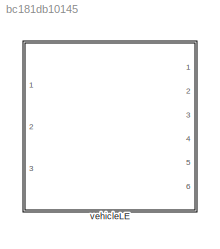
MODEL slx_bc181db10145
KIND library
CONFIG AbsTol = auto
CONFIG EnableMultiTasking = off
CONFIG FixedStep = auto
CONFIG MaxStep = auto
CONFIG MinStep = auto
CONFIG RelTol = 1e-3
CONFIG SampleTimeConstraint = Unconstrained
CONFIG Solver = VariableStepAuto
CONFIG SolverName = VariableStepAuto
CONFIG StartTime = 0.0
CONFIG StopTime = 10.0
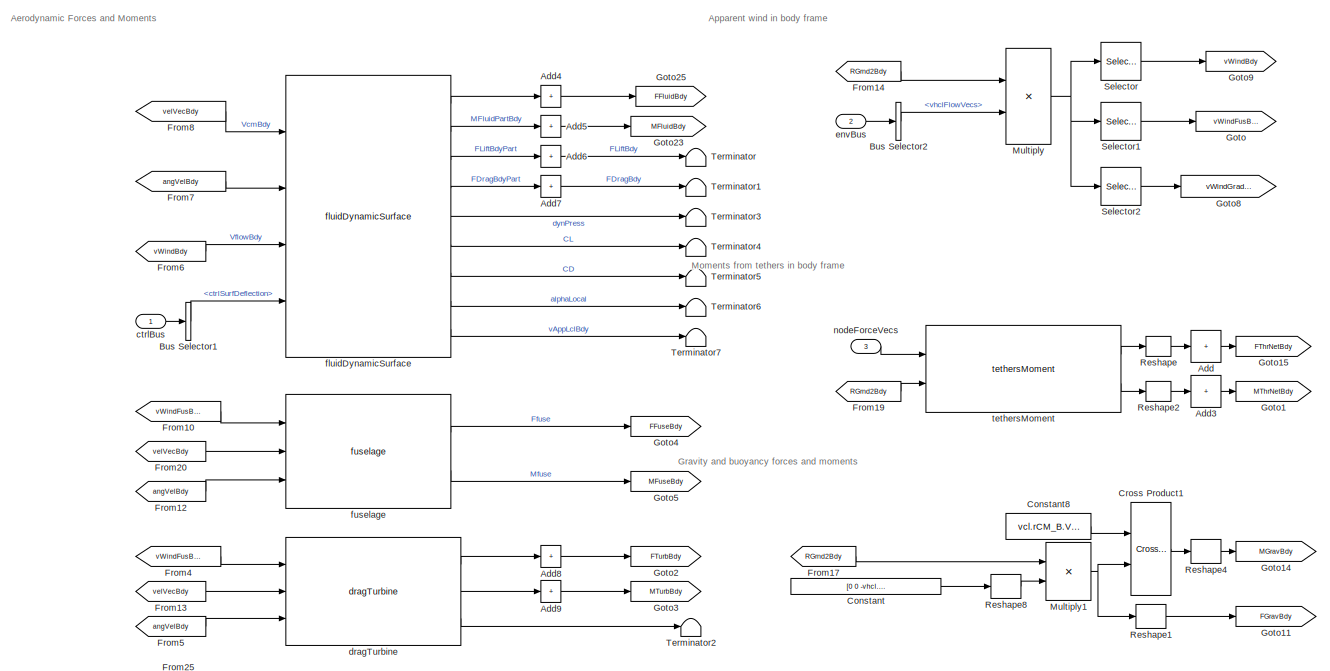
[diagram: vehicleLE - part 1/2, full width, top band]
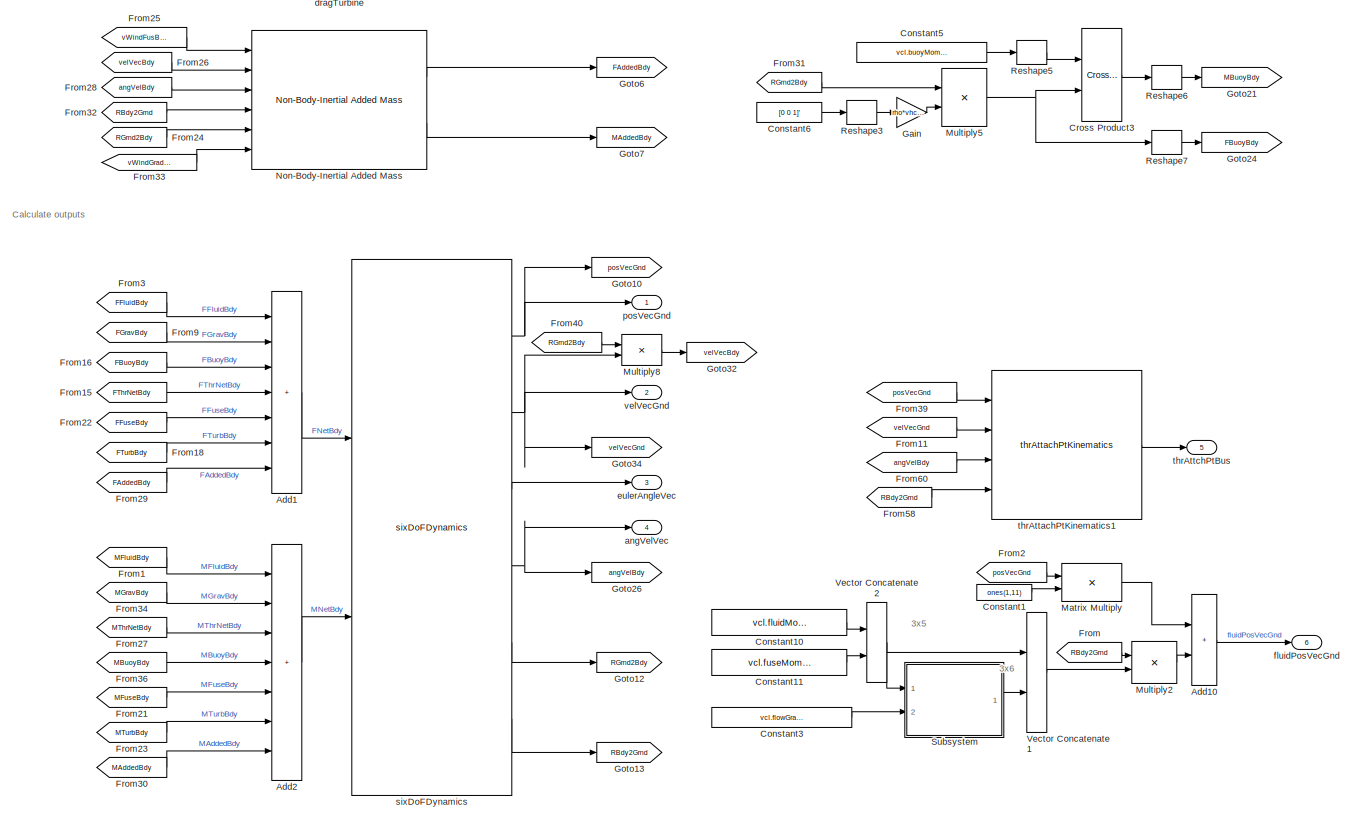
[diagram: vehicleLE - part 2/2, full width, bottom band]
BLOCK [SubSystem] vehicleLE
  Ports = [3, 6]
  RequestExecContextInheritance = off
  VariantControl = VSS_vehicle_vehicleLETest
BLOCK [Sum] vehicleLE/Add
  CollapseDim = 2
  CollapseMode = Specified dimension
  IconShape = rectangular
  Inputs = +
  Ports = [1, 1]
BLOCK [Sum] vehicleLE/Add1
  IconShape = rectangular
  Inputs = +++++++
  Ports = [7, 1]
BLOCK [Sum] vehicleLE/Add10
  IconShape = rectangular
  Ports = [2, 1]
BLOCK [Sum] vehicleLE/Add2
  IconShape = rectangular
  Inputs = +++++++
  Ports = [7, 1]
BLOCK [Sum] vehicleLE/Add3
  CollapseDim = 2
  CollapseMode = Specified dimension
  IconShape = rectangular
  Inputs = +
  Ports = [1, 1]
BLOCK [Sum] vehicleLE/Add4
  CollapseDim = 2
  CollapseMode = Specified dimension
  IconShape = rectangular
  Inputs = 1
  Ports = [1, 1]
BLOCK [Sum] vehicleLE/Add5
  CollapseDim = 2
  CollapseMode = Specified dimension
  IconShape = rectangular
  Inputs = 1
  Ports = [1, 1]
BLOCK [Sum] vehicleLE/Add6
  CollapseDim = 2
  CollapseMode = Specified dimension
  IconShape = rectangular
  Inputs = 1
  Ports = [1, 1]
BLOCK [Sum] vehicleLE/Add7
  CollapseDim = 2
  CollapseMode = Specified dimension
  IconShape = rectangular
  Inputs = 1
  Ports = [1, 1]
BLOCK [Sum] vehicleLE/Add8
  CollapseDim = 2
  CollapseMode = Specified dimension
  IconShape = rectangular
  Inputs = 1
  Ports = [1, 1]
BLOCK [Sum] vehicleLE/Add9
  CollapseDim = 2
  CollapseMode = Specified dimension
  IconShape = rectangular
  Inputs = 1
  Ports = [1, 1]
BLOCK [BusSelector] vehicleLE/Bus Selector1
  OutputSignals = ctrlSurfDeflection
  Ports = [1, 1]
BLOCK [BusSelector] vehicleLE/Bus Selector2
  OutputSignals = vhclFlowVecs
  Ports = [1, 1]
BLOCK [Constant] vehicleLE/Constant
  Value = [0 0 -vhcl.mass.Value*grav]
BLOCK [Constant] vehicleLE/Constant1
  Value = ones(1,11)
  VectorParams1D = off
BLOCK [Constant] vehicleLE/Constant10
  Value = vcl.fluidMomentArms.Value
BLOCK [Constant] vehicleLE/Constant11
  Value = vcl.fuseMomentArm.Value
BLOCK [Constant] vehicleLE/Constant3
  Value = vcl.flowGradientDist.Value
BLOCK [Constant] vehicleLE/Constant5
  Value = vcl.buoyMomentArm.Value
BLOCK [Constant] vehicleLE/Constant6
  Value = [0 0 1]'
BLOCK [Constant] vehicleLE/Constant8
  Value = vcl.rCM_B.Value
BLOCK [Reference] vehicleLE/Cross Product1  REF=vrlib/Utilities/Cross Product
  Ports = [2, 1]
  SourceBlock = vrlib/Utilities/Cross Product
  SourceProductBaseCode = SL
  SourceType = Cross Product
BLOCK [Reference] vehicleLE/Cross Product3  REF=vrlib/Utilities/Cross Product
  Ports = [2, 1]
  SourceBlock = vrlib/Utilities/Cross Product
  SourceProductBaseCode = SL
  SourceType = Cross Product
BLOCK [From] vehicleLE/From
  GotoTag = RBdy2Grnd
BLOCK [From] vehicleLE/From1
  GotoTag = MFluidBdy
BLOCK [From] vehicleLE/From10
  GotoTag = vWindFusBdy
BLOCK [From] vehicleLE/From11
  GotoTag = velVecGnd
BLOCK [From] vehicleLE/From12
  GotoTag = angVelBdy
BLOCK [From] vehicleLE/From13
  GotoTag = velVecBdy
BLOCK [From] vehicleLE/From14
  GotoTag = RGrnd2Bdy
BLOCK [From] vehicleLE/From15
  GotoTag = FThrNetBdy
BLOCK [From] vehicleLE/From16
  GotoTag = FBuoyBdy
BLOCK [From] vehicleLE/From17
  GotoTag = RGrnd2Bdy
BLOCK [From] vehicleLE/From18
  GotoTag = FTurbBdy
BLOCK [From] vehicleLE/From19
  GotoTag = RGrnd2Bdy
BLOCK [From] vehicleLE/From2
  GotoTag = posVecGnd
BLOCK [From] vehicleLE/From20
  GotoTag = velVecBdy
BLOCK [From] vehicleLE/From21
  GotoTag = MFuseBdy
BLOCK [From] vehicleLE/From22
  GotoTag = FFuseBdy
BLOCK [From] vehicleLE/From23
  GotoTag = MTurbBdy
BLOCK [From] vehicleLE/From24
  GotoTag = RGrnd2Bdy
BLOCK [From] vehicleLE/From25
  GotoTag = vWindFusBdy
BLOCK [From] vehicleLE/From26
  GotoTag = velVecBdy
BLOCK [From] vehicleLE/From27
  GotoTag = MThrNetBdy
BLOCK [From] vehicleLE/From28
  GotoTag = angVelBdy
BLOCK [From] vehicleLE/From29
  GotoTag = FAddedBdy
BLOCK [From] vehicleLE/From3
  GotoTag = FFluidBdy
BLOCK [From] vehicleLE/From30
  GotoTag = MAddedBdy
BLOCK [From] vehicleLE/From31
  GotoTag = RGrnd2Bdy
BLOCK [From] vehicleLE/From32
  GotoTag = RBdy2Grnd
BLOCK [From] vehicleLE/From33
  GotoTag = vWindGradGrnd
BLOCK [From] vehicleLE/From34
  GotoTag = MGravBdy
BLOCK [From] vehicleLE/From36
  GotoTag = MBuoyBdy
BLOCK [From] vehicleLE/From39
  GotoTag = posVecGnd
BLOCK [From] vehicleLE/From4
  GotoTag = vWindFusBdy
BLOCK [From] vehicleLE/From40
  GotoTag = RGrnd2Bdy
BLOCK [From] vehicleLE/From5
  GotoTag = angVelBdy
BLOCK [From] vehicleLE/From58
  GotoTag = RBdy2Grnd
BLOCK [From] vehicleLE/From6
  GotoTag = vWindBdy
BLOCK [From] vehicleLE/From60
  GotoTag = angVelBdy
BLOCK [From] vehicleLE/From7
  GotoTag = angVelBdy
BLOCK [From] vehicleLE/From8
  GotoTag = velVecBdy
BLOCK [From] vehicleLE/From9
  GotoTag = FGravBdy
BLOCK [Gain] vehicleLE/Gain
  Gain = rho*vhcl.volume.Value*grav
BLOCK [Goto] vehicleLE/Goto
  GotoTag = vWindFusBdy
BLOCK [Goto] vehicleLE/Goto1
  GotoTag = MThrNetBdy
BLOCK [Goto] vehicleLE/Goto10
  GotoTag = posVecGnd
BLOCK [Goto] vehicleLE/Goto11
  GotoTag = FGravBdy
BLOCK [Goto] vehicleLE/Goto12
  GotoTag = RGrnd2Bdy
BLOCK [Goto] vehicleLE/Goto13
  GotoTag = RBdy2Grnd
BLOCK [Goto] vehicleLE/Goto14
  GotoTag = MGravBdy
BLOCK [Goto] vehicleLE/Goto15
  GotoTag = FThrNetBdy
BLOCK [Goto] vehicleLE/Goto2
  GotoTag = FTurbBdy
BLOCK [Goto] vehicleLE/Goto21
  GotoTag = MBuoyBdy
BLOCK [Goto] vehicleLE/Goto23
  GotoTag = MFluidBdy
BLOCK [Goto] vehicleLE/Goto24
  GotoTag = FBuoyBdy
BLOCK [Goto] vehicleLE/Goto25
  GotoTag = FFluidBdy
BLOCK [Goto] vehicleLE/Goto26
  GotoTag = angVelBdy
BLOCK [Goto] vehicleLE/Goto3
  GotoTag = MTurbBdy
BLOCK [Goto] vehicleLE/Goto32
  GotoTag = velVecBdy
BLOCK [Goto] vehicleLE/Goto34
  GotoTag = velVecGnd
BLOCK [Goto] vehicleLE/Goto4
  GotoTag = FFuseBdy
BLOCK [Goto] vehicleLE/Goto5
  GotoTag = MFuseBdy
BLOCK [Goto] vehicleLE/Goto6
  GotoTag = FAddedBdy
BLOCK [Goto] vehicleLE/Goto7
  GotoTag = MAddedBdy
BLOCK [Goto] vehicleLE/Goto8
  GotoTag = vWindGradGrnd
BLOCK [Goto] vehicleLE/Goto9
  GotoTag = vWindBdy
BLOCK [Product] vehicleLE/Matrix Multiply
  Multiplication = Matrix(*)
  Ports = [2, 1]
BLOCK [Product] vehicleLE/Multiply
  Multiplication = Matrix(*)
  Ports = [2, 1]
BLOCK [Product] vehicleLE/Multiply1
  Multiplication = Matrix(*)
  Ports = [2, 1]
BLOCK [Product] vehicleLE/Multiply2
  Multiplication = Matrix(*)
  Ports = [2, 1]
BLOCK [Product] vehicleLE/Multiply5
  Multiplication = Matrix(*)
  Ports = [2, 1]
BLOCK [Product] vehicleLE/Multiply8
  Multiplication = Matrix(*)
  Ports = [2, 1]
BLOCK [Reference] vehicleLE/Non-Body-Inertial Added Mass  REF=addedMass_cl/Non-Body-Inertial Added Mass
  Ports = [6, 2]
  SourceBlock = addedMass_cl/Non-Body-Inertial Added Mass
BLOCK [Reshape] vehicleLE/Reshape
  OutputDimensionality = Customize
  OutputDimensions = [3 vcl.numTethers.Value]
  Ports = [1, 1]
BLOCK [Reshape] vehicleLE/Reshape1
  OutputDimensionality = Column vector (2-D)
  Ports = [1, 1]
BLOCK [Reshape] vehicleLE/Reshape2
  OutputDimensionality = Customize
  OutputDimensions = [3 vcl.numTethers.Value]
  Ports = [1, 1]
BLOCK [Reshape] vehicleLE/Reshape3
  OutputDimensionality = Column vector (2-D)
  Ports = [1, 1]
BLOCK [Reshape] vehicleLE/Reshape4
  OutputDimensionality = Column vector (2-D)
  Ports = [1, 1]
BLOCK [Reshape] vehicleLE/Reshape5
  OutputDimensionality = Column vector (2-D)
  Ports = [1, 1]
BLOCK [Reshape] vehicleLE/Reshape6
  OutputDimensionality = Column vector (2-D)
  Ports = [1, 1]
BLOCK [Reshape] vehicleLE/Reshape7
  OutputDimensionality = Column vector (2-D)
  Ports = [1, 1]
BLOCK [Reshape] vehicleLE/Reshape8
  OutputDimensionality = Column vector (2-D)
  Ports = [1, 1]
BLOCK [Selector] vehicleLE/Selector
  IndexOptions = Select all,Index vector (dialog)
  Indices = [1 3],1:4
  InputPortWidth = 3
  NumberOfDimensions = 2
  OutputSizes = 1,1
  Ports = [1, 1]
BLOCK [Selector] vehicleLE/Selector1
  IndexOptions = Select all,Index vector (dialog)
  Indices = [1 3],5
  InputPortWidth = 3
  NumberOfDimensions = 2
  OutputSizes = 1,1
  Ports = [1, 1]
BLOCK [Selector] vehicleLE/Selector2
  IndexOptions = Select all,Index vector (dialog)
  Indices = [1 3],6:11
  InputPortWidth = 3
  NumberOfDimensions = 2
  OutputSizes = 1,1
  Ports = [1, 1]
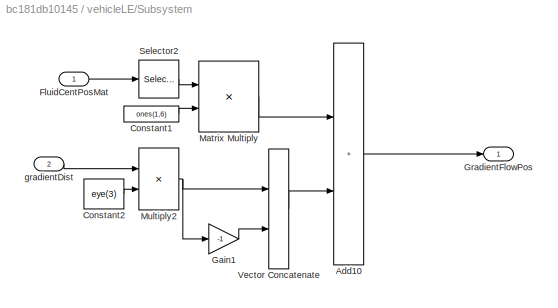
BLOCK [SubSystem] vehicleLE/Subsystem
  Ports = [2, 1]
  RequestExecContextInheritance = off
BLOCK [Sum] vehicleLE/Subsystem/Add10
  IconShape = rectangular
  Ports = [2, 1]
BLOCK [Constant] vehicleLE/Subsystem/Constant1
  Value = ones(1,6)
  VectorParams1D = off
BLOCK [Constant] vehicleLE/Subsystem/Constant2
  Value = eye(3)
BLOCK [Inport] vehicleLE/Subsystem/FluidCentPosMat
BLOCK [Gain] vehicleLE/Subsystem/Gain1
  Gain = -1
BLOCK [Outport] vehicleLE/Subsystem/GradientFlowPos
  VectorParamsAs1DForOutWhenUnconnected = off
BLOCK [Product] vehicleLE/Subsystem/Matrix Multiply
  Multiplication = Matrix(*)
  Ports = [2, 1]
BLOCK [Product] vehicleLE/Subsystem/Multiply2
  Ports = [2, 1]
BLOCK [Selector] vehicleLE/Subsystem/Selector2
  IndexOptions = Select all,Index vector (dialog)
  Indices = [1 3],5
  InputPortWidth = 3
  NumberOfDimensions = 2
  OutputSizes = 1,1
  Ports = [1, 1]
BLOCK [Concatenate] vehicleLE/Subsystem/Vector Concatenate
  ConcatenateDimension = 2
  Mode = Multidimensional array
  Ports = [2, 1]
BLOCK [Inport] vehicleLE/Subsystem/gradientDist
  Port = 2
BLOCK [Terminator] vehicleLE/Terminator
BLOCK [Terminator] vehicleLE/Terminator1
BLOCK [Terminator] vehicleLE/Terminator2
BLOCK [Terminator] vehicleLE/Terminator3
BLOCK [Terminator] vehicleLE/Terminator4
BLOCK [Terminator] vehicleLE/Terminator5
BLOCK [Terminator] vehicleLE/Terminator6
BLOCK [Terminator] vehicleLE/Terminator7
BLOCK [Concatenate] vehicleLE/Vector Concatenate1
  ConcatenateDimension = 2
  Mode = Multidimensional array
  Ports = [2, 1]
BLOCK [Concatenate] vehicleLE/Vector Concatenate2
  ConcatenateDimension = 2
  Mode = Multidimensional array
  Ports = [2, 1]
BLOCK [Outport] vehicleLE/angVelVec
  Port = 4
  VectorParamsAs1DForOutWhenUnconnected = off
BLOCK [Inport] vehicleLE/ctrlBus
  OutDataTypeStr = Bus: fltCtrlBus
BLOCK [Reference] vehicleLE/dragTurbine  REF=dragTurbine_ul/dragTurbine
  Ports = [3, 3]
  SourceBlock = dragTurbine_ul/dragTurbine
BLOCK [Inport] vehicleLE/envBus
  OutDataTypeStr = Bus: envBus
  Port = 2
BLOCK [Outport] vehicleLE/eulerAngleVec
  Port = 3
  VectorParamsAs1DForOutWhenUnconnected = off
BLOCK [Reference] vehicleLE/fluidDynamicSurface  REF=fluidDynamicSurface_cl/fluidDynamicSurface
  Ports = [4, 9]
  SourceBlock = fluidDynamicSurface_cl/fluidDynamicSurface
BLOCK [Outport] vehicleLE/fluidPosVecGnd
  Port = 6
  VectorParamsAs1DForOutWhenUnconnected = off
BLOCK [Reference] vehicleLE/fuselage  REF=fuselage_cl/fuselage  (lib defined in slx_45091b95913d, slx_54a95fec013f)
  Ports = [3, 2]
  SourceBlock = fuselage_cl/fuselage
BLOCK [Inport] vehicleLE/nodeForceVecs
  Port = 3
BLOCK [Outport] vehicleLE/posVecGnd
  VectorParamsAs1DForOutWhenUnconnected = off
BLOCK [Reference] vehicleLE/sixDoFDynamics  REF=sixDoFDynamics_cl/sixDoFDynamics
  Ports = [2, 6]
  SourceBlock = sixDoFDynamics_cl/sixDoFDynamics
BLOCK [Reference] vehicleLE/tethersMoment  REF=tethersMoment_cl/tethersMoment
  Ports = [2, 2]
  SourceBlock = tethersMoment_cl/tethersMoment
BLOCK [Reference] vehicleLE/thrAttachPtKinematics1  REF=thrAttachPtKinematics_ul/thrAttachPtKinematics
  Ports = [4, 1]
  SourceBlock = thrAttachPtKinematics_ul/thrAttachPtKinematics
BLOCK [Outport] vehicleLE/thrAttchPtBus
  Port = 5
  VectorParamsAs1DForOutWhenUnconnected = off
BLOCK [Outport] vehicleLE/velVecGnd
  Port = 2
  VectorParamsAs1DForOutWhenUnconnected = off
ANNOTATION vehicleLE: 3x5
ANNOTATION vehicleLE: 3x6
ANNOTATION vehicleLE: Aerodynamic Forces and Moments
ANNOTATION vehicleLE: Apparent wind in body frame
ANNOTATION vehicleLE: Calculate outputs
ANNOTATION vehicleLE: Gravity and buoyancy forces and moments
ANNOTATION vehicleLE: Moments from tethers in body frame
LINE vehicleLE/Add10:1 -> vehicleLE/fluidPosVecGnd:1
LINE vehicleLE/Add1:1 -> vehicleLE/sixDoFDynamics:1
LINE vehicleLE/Add2:1 -> vehicleLE/sixDoFDynamics:2
LINE vehicleLE/Add3:1 -> vehicleLE/Goto1:1
LINE vehicleLE/Add4:1 -> vehicleLE/Goto25:1
LINE vehicleLE/Add5:1 -> vehicleLE/Goto23:1
LINE vehicleLE/Add6:1 -> vehicleLE/Terminator:1
LINE vehicleLE/Add7:1 -> vehicleLE/Terminator1:1
LINE vehicleLE/Add8:1 -> vehicleLE/Goto2:1
LINE vehicleLE/Add9:1 -> vehicleLE/Goto3:1
LINE vehicleLE/Add:1 -> vehicleLE/Goto15:1
LINE vehicleLE/Bus Selector1:1 -> vehicleLE/fluidDynamicSurface:4
LINE vehicleLE/Bus Selector2:1 -> vehicleLE/Multiply:2
LINE vehicleLE/Constant10:1 -> vehicleLE/Vector Concatenate2:1
LINE vehicleLE/Constant11:1 -> vehicleLE/Vector Concatenate2:2
LINE vehicleLE/Constant1:1 -> vehicleLE/Matrix Multiply:2
LINE vehicleLE/Constant3:1 -> vehicleLE/Subsystem:2
LINE vehicleLE/Constant5:1 -> vehicleLE/Reshape5:1
LINE vehicleLE/Constant6:1 -> vehicleLE/Reshape3:1
LINE vehicleLE/Constant8:1 -> vehicleLE/Cross Product1:1
LINE vehicleLE/Constant:1 -> vehicleLE/Reshape8:1
LINE vehicleLE/Cross Product1:1 -> vehicleLE/Reshape4:1
LINE vehicleLE/Cross Product3:1 -> vehicleLE/Reshape6:1
LINE vehicleLE/From10:1 -> vehicleLE/fuselage:1
LINE vehicleLE/From11:1 -> vehicleLE/thrAttachPtKinematics1:2
LINE vehicleLE/From12:1 -> vehicleLE/fuselage:3
LINE vehicleLE/From13:1 -> vehicleLE/dragTurbine:2
LINE vehicleLE/From14:1 -> vehicleLE/Multiply:1
LINE vehicleLE/From15:1 -> vehicleLE/Add1:4
LINE vehicleLE/From16:1 -> vehicleLE/Add1:3
LINE vehicleLE/From17:1 -> vehicleLE/Multiply1:1
LINE vehicleLE/From18:1 -> vehicleLE/Add1:6
LINE vehicleLE/From19:1 -> vehicleLE/tethersMoment:2
LINE vehicleLE/From1:1 -> vehicleLE/Add2:1
LINE vehicleLE/From20:1 -> vehicleLE/fuselage:2
LINE vehicleLE/From21:1 -> vehicleLE/Add2:5
LINE vehicleLE/From22:1 -> vehicleLE/Add1:5
LINE vehicleLE/From23:1 -> vehicleLE/Add2:6
LINE vehicleLE/From24:1 -> vehicleLE/Non-Body-Inertial Added Mass:5
LINE vehicleLE/From25:1 -> vehicleLE/Non-Body-Inertial Added Mass:1
LINE vehicleLE/From26:1 -> vehicleLE/Non-Body-Inertial Added Mass:2
LINE vehicleLE/From27:1 -> vehicleLE/Add2:3
LINE vehicleLE/From28:1 -> vehicleLE/Non-Body-Inertial Added Mass:3
LINE vehicleLE/From29:1 -> vehicleLE/Add1:7
LINE vehicleLE/From2:1 -> vehicleLE/Matrix Multiply:1
LINE vehicleLE/From30:1 -> vehicleLE/Add2:7
LINE vehicleLE/From31:1 -> vehicleLE/Multiply5:1
LINE vehicleLE/From32:1 -> vehicleLE/Non-Body-Inertial Added Mass:4
LINE vehicleLE/From33:1 -> vehicleLE/Non-Body-Inertial Added Mass:6
LINE vehicleLE/From34:1 -> vehicleLE/Add2:2
LINE vehicleLE/From36:1 -> vehicleLE/Add2:4
LINE vehicleLE/From39:1 -> vehicleLE/thrAttachPtKinematics1:1
LINE vehicleLE/From3:1 -> vehicleLE/Add1:1
LINE vehicleLE/From40:1 -> vehicleLE/Multiply8:1
LINE vehicleLE/From4:1 -> vehicleLE/dragTurbine:1
LINE vehicleLE/From58:1 -> vehicleLE/thrAttachPtKinematics1:4
LINE vehicleLE/From5:1 -> vehicleLE/dragTurbine:3
LINE vehicleLE/From60:1 -> vehicleLE/thrAttachPtKinematics1:3
LINE vehicleLE/From6:1 -> vehicleLE/fluidDynamicSurface:3
LINE vehicleLE/From7:1 -> vehicleLE/fluidDynamicSurface:2
LINE vehicleLE/From8:1 -> vehicleLE/fluidDynamicSurface:1
LINE vehicleLE/From9:1 -> vehicleLE/Add1:2
LINE vehicleLE/From:1 -> vehicleLE/Multiply2:1
LINE vehicleLE/Gain:1 -> vehicleLE/Multiply5:2
LINE vehicleLE/Matrix Multiply:1 -> vehicleLE/Add10:1
NET vehicleLE/Multiply1:1 -> vehicleLE/Cross Product1:2, vehicleLE/Reshape1:1
LINE vehicleLE/Multiply2:1 -> vehicleLE/Add10:2
NET vehicleLE/Multiply5:1 -> vehicleLE/Cross Product3:2, vehicleLE/Reshape7:1
LINE vehicleLE/Multiply8:1 -> vehicleLE/Goto32:1
NET vehicleLE/Multiply:1 -> vehicleLE/Selector1:1, vehicleLE/Selector2:1, vehicleLE/Selector:1
LINE vehicleLE/Non-Body-Inertial Added Mass:1 -> vehicleLE/Goto6:1
LINE vehicleLE/Non-Body-Inertial Added Mass:2 -> vehicleLE/Goto7:1
LINE vehicleLE/Reshape1:1 -> vehicleLE/Goto11:1
LINE vehicleLE/Reshape2:1 -> vehicleLE/Add3:1
LINE vehicleLE/Reshape3:1 -> vehicleLE/Gain:1
LINE vehicleLE/Reshape4:1 -> vehicleLE/Goto14:1
LINE vehicleLE/Reshape5:1 -> vehicleLE/Cross Product3:1
LINE vehicleLE/Reshape6:1 -> vehicleLE/Goto21:1
LINE vehicleLE/Reshape7:1 -> vehicleLE/Goto24:1
LINE vehicleLE/Reshape8:1 -> vehicleLE/Multiply1:2
LINE vehicleLE/Reshape:1 -> vehicleLE/Add:1
LINE vehicleLE/Selector1:1 -> vehicleLE/Goto:1
LINE vehicleLE/Selector2:1 -> vehicleLE/Goto8:1
LINE vehicleLE/Selector:1 -> vehicleLE/Goto9:1
LINE vehicleLE/Subsystem/Add10:1 -> vehicleLE/Subsystem/GradientFlowPos:1
LINE vehicleLE/Subsystem/Constant1:1 -> vehicleLE/Subsystem/Matrix Multiply:2
LINE vehicleLE/Subsystem/Constant2:1 -> vehicleLE/Subsystem/Multiply2:2
LINE vehicleLE/Subsystem/FluidCentPosMat:1 -> vehicleLE/Subsystem/Selector2:1
LINE vehicleLE/Subsystem/Gain1:1 -> vehicleLE/Subsystem/Vector Concatenate:2
LINE vehicleLE/Subsystem/Matrix Multiply:1 -> vehicleLE/Subsystem/Add10:1
NET vehicleLE/Subsystem/Multiply2:1 -> vehicleLE/Subsystem/Gain1:1, vehicleLE/Subsystem/Vector Concatenate:1
LINE vehicleLE/Subsystem/Selector2:1 -> vehicleLE/Subsystem/Matrix Multiply:1
LINE vehicleLE/Subsystem/Vector Concatenate:1 -> vehicleLE/Subsystem/Add10:2
LINE vehicleLE/Subsystem/gradientDist:1 -> vehicleLE/Subsystem/Multiply2:1
LINE vehicleLE/Subsystem:1 -> vehicleLE/Vector Concatenate1:2
LINE vehicleLE/Vector Concatenate1:1 -> vehicleLE/Multiply2:2
NET vehicleLE/Vector Concatenate2:1 -> vehicleLE/Subsystem:1, vehicleLE/Vector Concatenate1:1
LINE vehicleLE/ctrlBus:1 -> vehicleLE/Bus Selector1:1
LINE vehicleLE/dragTurbine:1 -> vehicleLE/Add8:1
LINE vehicleLE/dragTurbine:2 -> vehicleLE/Add9:1
LINE vehicleLE/dragTurbine:3 -> vehicleLE/Terminator2:1
LINE vehicleLE/envBus:1 -> vehicleLE/Bus Selector2:1
LINE vehicleLE/fluidDynamicSurface:1 -> vehicleLE/Add4:1
LINE vehicleLE/fluidDynamicSurface:2 -> vehicleLE/Add5:1
LINE vehicleLE/fluidDynamicSurface:3 -> vehicleLE/Add6:1
LINE vehicleLE/fluidDynamicSurface:4 -> vehicleLE/Add7:1
LINE vehicleLE/fluidDynamicSurface:5 -> vehicleLE/Terminator3:1
LINE vehicleLE/fluidDynamicSurface:6 -> vehicleLE/Terminator4:1
LINE vehicleLE/fluidDynamicSurface:7 -> vehicleLE/Terminator5:1
LINE vehicleLE/fluidDynamicSurface:8 -> vehicleLE/Terminator6:1
LINE vehicleLE/fluidDynamicSurface:9 -> vehicleLE/Terminator7:1
LINE vehicleLE/fuselage:1 -> vehicleLE/Goto4:1
LINE vehicleLE/fuselage:2 -> vehicleLE/Goto5:1
LINE vehicleLE/nodeForceVecs:1 -> vehicleLE/tethersMoment:1
NET vehicleLE/sixDoFDynamics:1 -> vehicleLE/Goto10:1, vehicleLE/posVecGnd:1
NET vehicleLE/sixDoFDynamics:2 -> vehicleLE/Goto34:1, vehicleLE/Multiply8:2, vehicleLE/velVecGnd:1
LINE vehicleLE/sixDoFDynamics:3 -> vehicleLE/eulerAngleVec:1
NET vehicleLE/sixDoFDynamics:4 -> vehicleLE/Goto26:1, vehicleLE/angVelVec:1
LINE vehicleLE/sixDoFDynamics:5 -> vehicleLE/Goto12:1
LINE vehicleLE/sixDoFDynamics:6 -> vehicleLE/Goto13:1
LINE vehicleLE/tethersMoment:1 -> vehicleLE/Reshape:1
LINE vehicleLE/tethersMoment:2 -> vehicleLE/Reshape2:1
LINE vehicleLE/thrAttachPtKinematics1:1 -> vehicleLE/thrAttchPtBus:1
note: NET lines group one-source signal fan-out (src -> all destinations, sorted); 1:1 wires keep LINE
